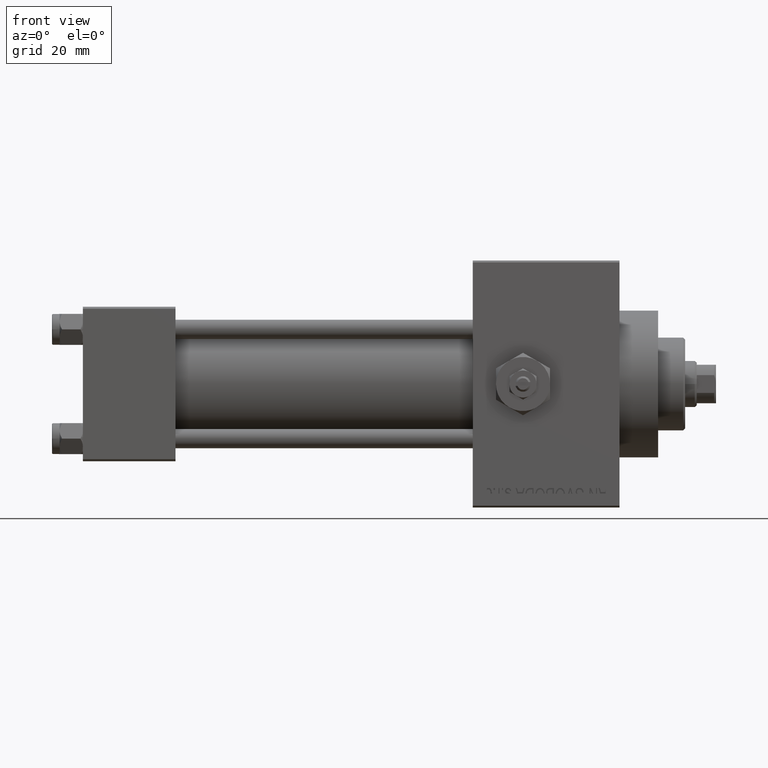
[diagram: clean part render]
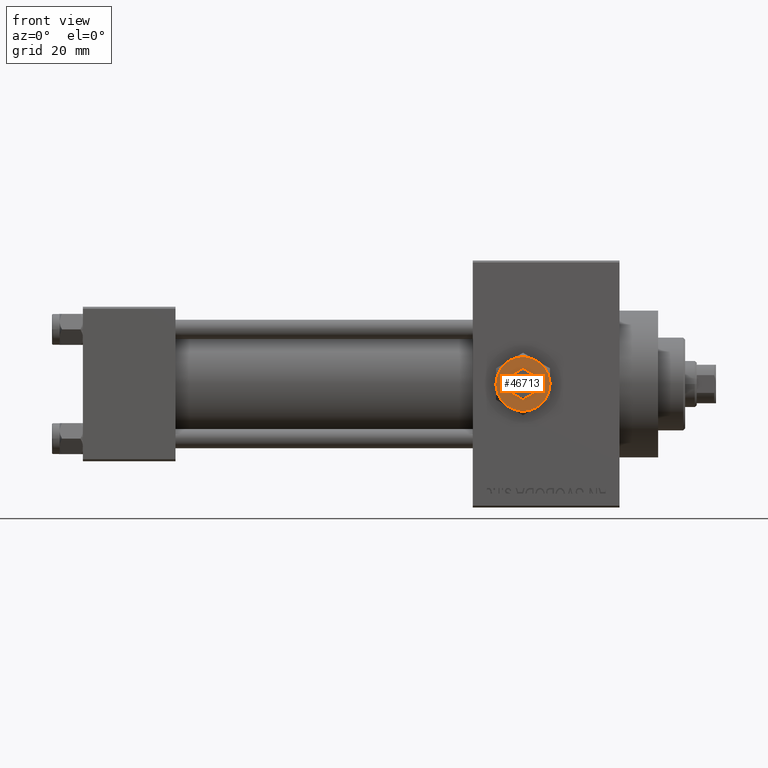
[diagram: same view with one face highlighted and labeled with its STEP entity id]
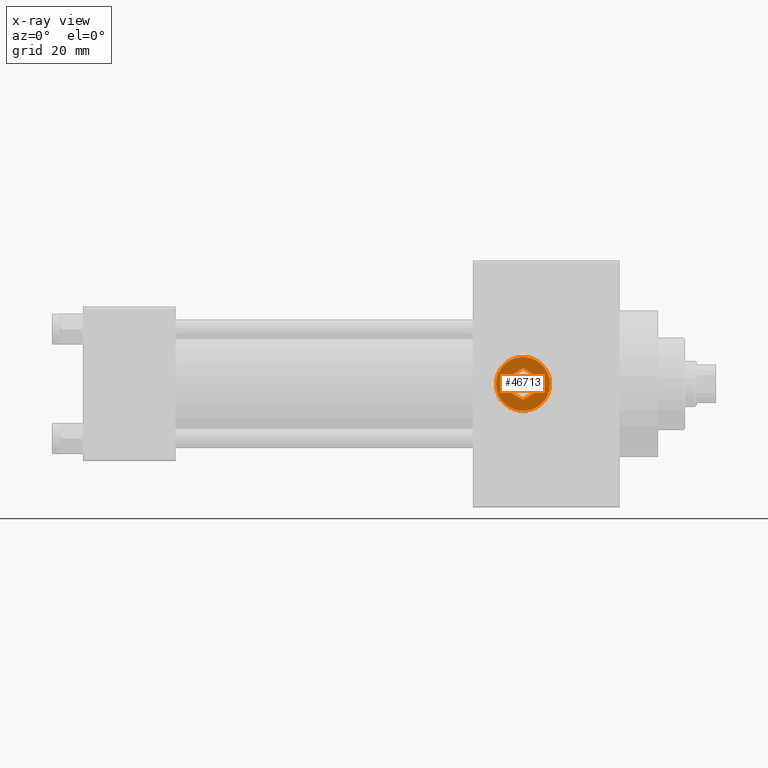
[diagram: x-ray of the same camera — body ghosted, the highlighted face saturated]
A machine part, front view. The second image highlights one B-rep face of the part: STEP entity #46713.
The next image is the same camera in x-ray: the body ghosted, the highlighted face saturated — about 0% of this face is hidden behind the body in this view.
In plain terms, the highlighted planar face has unit normal (0, -1, -0).
Its self-contained STEP definition (entity closure, byte-faithful):
#77 = ORIENTED_EDGE ( 'NONE', *, *, #21982, .F. ) ;
#325 = VERTEX_POINT ( 'NONE', #19747 ) ;
#571 = ORIENTED_EDGE ( 'NONE', *, *, #32441, .T. ) ;
#1056 = CARTESIAN_POINT ( 'NONE',  ( 0.000000000000000000, 0.000000000000000000, 4.299999999999999822 ) ) ;
#1086 = DIRECTION ( 'NONE',  ( 1.000000000000000000, 0.000000000000000000, -0.000000000000000000 ) ) ;
#2071 = VECTOR ( 'NONE', #48804, 1000.000000000000114 ) ;
#2152 = EDGE_LOOP ( 'NONE', ( #10717, #4498, #44611, #77, #9955, #48462 ) ) ;
#2254 = LINE ( 'NONE', #35468, #48709 ) ;
#2773 = CARTESIAN_POINT ( 'NONE',  ( 3.500000000000000888, -6.062177826491073951, 4.299999999999999822 ) ) ;
#2786 = AXIS2_PLACEMENT_3D ( 'NONE', #1056, #42412, #27819 ) ;
#3154 = CARTESIAN_POINT ( 'NONE',  ( 3.500000000000000000, -2.020725942163690281, 4.299999999999999822 ) ) ;
#3169 = CARTESIAN_POINT ( 'NONE',  ( 0.000000000000000000, 0.000000000000000000, 4.299999999999999822 ) ) ;
#3586 = FACE_BOUND ( 'NONE', #2152, .T. ) ;
#4158 = EDGE_LOOP ( 'NONE', ( #20881, #36178, #4987, #16835, #38038, #571 ) ) ;
#4498 = ORIENTED_EDGE ( 'NONE', *, *, #46924, .F. ) ;
#4736 = CARTESIAN_POINT ( 'NONE',  ( -2.443687887572056883E-16, -4.041451884327378785, 4.299999999999999822 ) ) ;
#4987 = ORIENTED_EDGE ( 'NONE', *, *, #38255, .T. ) ;
#5614 = AXIS2_PLACEMENT_3D ( 'NONE', #13947, #44148, #30280 ) ;
#5882 = VERTEX_POINT ( 'NONE', #18439 ) ;
#7320 = CIRCLE ( 'NONE', #17614, 7.000000000000001776 ) ;
#7454 = DIRECTION ( 'NONE',  ( 0.000000000000000000, 0.000000000000000000, 1.000000000000000000 ) ) ;
#7616 = DIRECTION ( 'NONE',  ( 0.000000000000000000, 0.000000000000000000, 1.000000000000000000 ) ) ;
#7691 = CARTESIAN_POINT ( 'NONE',  ( 0.000000000000000000, 0.000000000000000000, 4.299999999999999822 ) ) ;
#7886 = CARTESIAN_POINT ( 'NONE',  ( 0.000000000000000000, 0.000000000000000000, 4.299999999999999822 ) ) ;
#8940 = VERTEX_POINT ( 'NONE', #15826 ) ;
#9103 = VERTEX_POINT ( 'NONE', #3154 ) ;
#9142 = CARTESIAN_POINT ( 'NONE',  ( 3.499999999999999556, -2.020725942163690281, 4.299999999999999822 ) ) ;
#9926 = DIRECTION ( 'NONE',  ( -0.8660254037844385966, -0.4999999999999998890, 0.000000000000000000 ) ) ;
#9955 = ORIENTED_EDGE ( 'NONE', *, *, #27393, .F. ) ;
#10717 = ORIENTED_EDGE ( 'NONE', *, *, #18062, .F. ) ;
#10730 = DIRECTION ( 'NONE',  ( 0.8660254037844388186, 0.4999999999999996669, 0.000000000000000000 ) ) ;
#11014 = AXIS2_PLACEMENT_3D ( 'NONE', #7691, #7454, #22571 ) ;
#11883 = DIRECTION ( 'NONE',  ( -3.219245568722483357E-16, 1.000000000000000000, 0.000000000000000000 ) ) ;
#13689 = VERTEX_POINT ( 'NONE', #46092 ) ;
#13847 = VERTEX_POINT ( 'NONE', #38837 ) ;
#13947 = CARTESIAN_POINT ( 'NONE',  ( 0.000000000000000000, 0.000000000000000000, 4.299999999999999822 ) ) ;
#14814 = EDGE_CURVE ( 'NONE', #26668, #34815, #16225, .T. ) ;
#15826 = CARTESIAN_POINT ( 'NONE',  ( -3.499999999999998668, -2.020725942163689837, 4.299999999999999822 ) ) ;
#16225 = CIRCLE ( 'NONE', #2786, 7.000000000000001776 ) ;
#16835 = ORIENTED_EDGE ( 'NONE', *, *, #31856, .T. ) ;
#17291 = DIRECTION ( 'NONE',  ( 1.073081856240828196E-16, -1.000000000000000000, 0.000000000000000000 ) ) ;
#17614 = AXIS2_PLACEMENT_3D ( 'NONE', #3169, #7616, #48695 ) ;
#18062 = EDGE_CURVE ( 'NONE', #325, #13847, #2254, .T. ) ;
#18439 = CARTESIAN_POINT ( 'NONE',  ( -7.000000000000001776, -2.253471898105739040E-15, 4.299999999999999822 ) ) ;
#18640 = LINE ( 'NONE', #33747, #2071 ) ;
#19040 = DIRECTION ( 'NONE',  ( 1.000000000000000000, 0.000000000000000000, 0.000000000000000000 ) ) ;
#19669 = EDGE_CURVE ( 'NONE', #34815, #36475, #26689, .T. ) ;
#19747 = CARTESIAN_POINT ( 'NONE',  ( 0.000000000000000000, 4.041451884327380562, 4.299999999999999822 ) ) ;
#20539 = CIRCLE ( 'NONE', #11014, 7.000000000000001776 ) ;
#20881 = ORIENTED_EDGE ( 'NONE', *, *, #14814, .T. ) ;
#21747 = CARTESIAN_POINT ( 'NONE',  ( -3.499999999999999112, 2.020725942163690725, 4.299999999999999822 ) ) ;
#21982 = EDGE_CURVE ( 'NONE', #30259, #9103, #22374, .T. ) ;
#22374 = LINE ( 'NONE', #29821, #36908 ) ;
#22571 = DIRECTION ( 'NONE',  ( 1.000000000000000000, 0.000000000000000000, 0.000000000000000000 ) ) ;
#22663 = DIRECTION ( 'NONE',  ( 0.000000000000000000, 0.000000000000000000, 1.000000000000000000 ) ) ;
#22971 = CARTESIAN_POINT ( 'NONE',  ( 6.999999999999994671, 3.004629197474313724E-15, 4.299999999999999822 ) ) ;
#23376 = DIRECTION ( 'NONE',  ( 0.000000000000000000, 0.000000000000000000, 1.000000000000000000 ) ) ;
#24389 = VERTEX_POINT ( 'NONE', #41335 ) ;
#24577 = EDGE_CURVE ( 'NONE', #13847, #8940, #48205, .T. ) ;
#25643 = DIRECTION ( 'NONE',  ( 1.000000000000000000, 0.000000000000000000, 0.000000000000000000 ) ) ;
#26668 = VERTEX_POINT ( 'NONE', #2773 ) ;
#26689 = CIRCLE ( 'NONE', #37751, 7.000000000000001776 ) ;
#27393 = EDGE_CURVE ( 'NONE', #8940, #30259, #48676, .T. ) ;
#27819 = DIRECTION ( 'NONE',  ( 1.000000000000000000, 0.000000000000000000, 0.000000000000000000 ) ) ;
#28244 = EDGE_CURVE ( 'NONE', #5882, #35322, #20539, .T. ) ;
#28688 = VECTOR ( 'NONE', #11883, 1000.000000000000000 ) ;
#29665 = CARTESIAN_POINT ( 'NONE',  ( -3.499999999999998668, -2.020725942163689837, 4.299999999999999822 ) ) ;
#29821 = CARTESIAN_POINT ( 'NONE',  ( -2.443687887572056883E-16, -4.041451884327378785, 4.299999999999999822 ) ) ;
#30259 = VERTEX_POINT ( 'NONE', #4736 ) ;
#30280 = DIRECTION ( 'NONE',  ( 1.000000000000000000, 0.000000000000000000, 0.000000000000000000 ) ) ;
#30937 = CIRCLE ( 'NONE', #5614, 7.000000000000001776 ) ;
#31071 = PLANE ( 'NONE',  #41559 ) ;
#31856 = EDGE_CURVE ( 'NONE', #24389, #5882, #30937, .T. ) ;
#32441 = EDGE_CURVE ( 'NONE', #35322, #26668, #7320, .T. ) ;
#33747 = CARTESIAN_POINT ( 'NONE',  ( 3.499999999999998224, 2.020725942163691613, 4.299999999999999822 ) ) ;
#33826 = VECTOR ( 'NONE', #17291, 1000.000000000000000 ) ;
#34180 = CARTESIAN_POINT ( 'NONE',  ( -3.500000000000000000, -6.062177826491073063, 4.299999999999999822 ) ) ;
#34815 = VERTEX_POINT ( 'NONE', #22971 ) ;
#35322 = VERTEX_POINT ( 'NONE', #34180 ) ;
#35468 = CARTESIAN_POINT ( 'NONE',  ( 0.000000000000000000, 4.041451884327380562, 4.299999999999999822 ) ) ;
#35533 = CARTESIAN_POINT ( 'NONE',  ( 3.500000000000000444, 6.062177826491073063, 4.299999999999999822 ) ) ;
#35998 = EDGE_CURVE ( 'NONE', #9103, #13689, #43060, .T. ) ;
#36178 = ORIENTED_EDGE ( 'NONE', *, *, #19669, .T. ) ;
#36475 = VERTEX_POINT ( 'NONE', #35533 ) ;
#36908 = VECTOR ( 'NONE', #10730, 1000.000000000000114 ) ;
#37751 = AXIS2_PLACEMENT_3D ( 'NONE', #44693, #22663, #25643 ) ;
#38038 = ORIENTED_EDGE ( 'NONE', *, *, #28244, .T. ) ;
#38255 = EDGE_CURVE ( 'NONE', #36475, #24389, #41393, .T. ) ;
#38837 = CARTESIAN_POINT ( 'NONE',  ( -3.499999999999999112, 2.020725942163690725, 4.299999999999999822 ) ) ;
#41078 = DIRECTION ( 'NONE',  ( 0.000000000000000000, 0.000000000000000000, 1.000000000000000000 ) ) ;
#41335 = CARTESIAN_POINT ( 'NONE',  ( -3.500000000000000888, 6.062177826491073063, 4.299999999999999822 ) ) ;
#41393 = CIRCLE ( 'NONE', #47705, 7.000000000000001776 ) ;
#41559 = AXIS2_PLACEMENT_3D ( 'NONE', #42443, #23376, #1086 ) ;
#42412 = DIRECTION ( 'NONE',  ( 0.000000000000000000, 0.000000000000000000, 1.000000000000000000 ) ) ;
#42443 = CARTESIAN_POINT ( 'NONE',  ( 0.000000000000000000, 0.000000000000000000, 4.299999999999999822 ) ) ;
#42621 = VECTOR ( 'NONE', #44740, 1000.000000000000227 ) ;
#43060 = LINE ( 'NONE', #9142, #28688 ) ;
#44148 = DIRECTION ( 'NONE',  ( 0.000000000000000000, 0.000000000000000000, 1.000000000000000000 ) ) ;
#44444 = FACE_OUTER_BOUND ( 'NONE', #4158, .T. ) ;
#44611 = ORIENTED_EDGE ( 'NONE', *, *, #35998, .F. ) ;
#44693 = CARTESIAN_POINT ( 'NONE',  ( 0.000000000000000000, 0.000000000000000000, 4.299999999999999822 ) ) ;
#44740 = DIRECTION ( 'NONE',  ( 0.8660254037844385966, -0.4999999999999998890, 0.000000000000000000 ) ) ;
#46092 = CARTESIAN_POINT ( 'NONE',  ( 3.499999999999998224, 2.020725942163691613, 4.299999999999999822 ) ) ;
#46713 = ADVANCED_FACE ( 'NONE', ( #44444, #3586 ), #31071, .T. ) ;
#46924 = EDGE_CURVE ( 'NONE', #13689, #325, #18640, .T. ) ;
#47705 = AXIS2_PLACEMENT_3D ( 'NONE', #7886, #41078, #19040 ) ;
#48205 = LINE ( 'NONE', #21747, #33826 ) ;
#48462 = ORIENTED_EDGE ( 'NONE', *, *, #24577, .F. ) ;
#48676 = LINE ( 'NONE', #29665, #42621 ) ;
#48695 = DIRECTION ( 'NONE',  ( 1.000000000000000000, 0.000000000000000000, 0.000000000000000000 ) ) ;
#48709 = VECTOR ( 'NONE', #9926, 1000.000000000000227 ) ;
#48804 = DIRECTION ( 'NONE',  ( -0.8660254037844387076, 0.4999999999999998335, 0.000000000000000000 ) ) ;